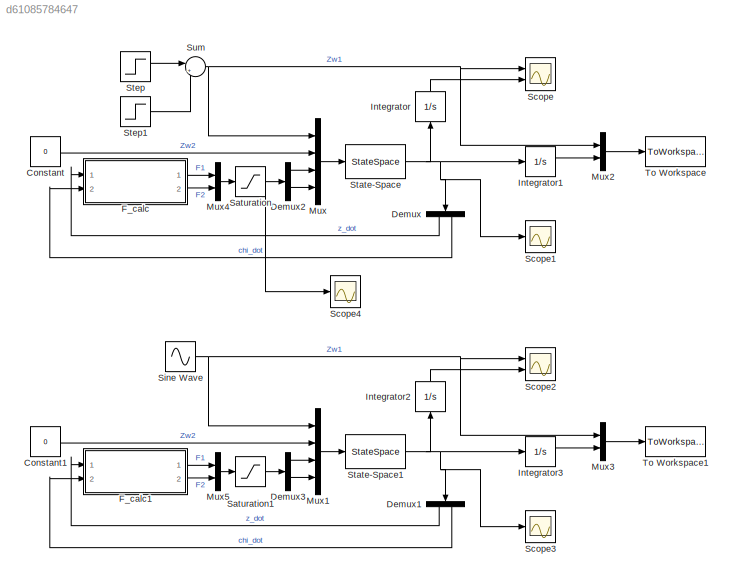
MODEL slx_d61085784647
KIND model
CONFIG AbsTol = auto
CONFIG EnableMultiTasking = off
CONFIG FixedStep = auto
CONFIG MaxStep = auto
CONFIG MinStep = auto
CONFIG RelTol = 1e-3
CONFIG SampleTimeConstraint = Unconstrained
CONFIG Solver = VariableStepAuto
CONFIG SolverName = VariableStepAuto
CONFIG StartTime = 0.0
CONFIG StopTime = 5
BLOCK [Constant] Constant
  Value = 0
BLOCK [Constant] Constant1
  Value = 0
BLOCK [Demux] Demux
  DisplayOption = bar
  Outputs = 2
  Ports = [1, 2]
BLOCK [Demux] Demux1
  DisplayOption = bar
  Outputs = 2
  Ports = [1, 2]
BLOCK [Demux] Demux2
  DisplayOption = bar
  Outputs = 2
  Ports = [1, 2]
BLOCK [Demux] Demux3
  DisplayOption = bar
  Outputs = 2
  Ports = [1, 2]
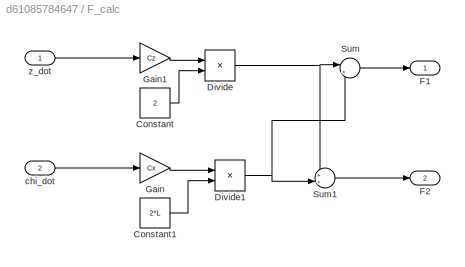
BLOCK [SubSystem] F_calc
  Ports = [2, 2]
  RequestExecContextInheritance = off
BLOCK [Constant] F_calc/Constant
  Value = 2
BLOCK [Constant] F_calc/Constant1
  Value = 2*L
BLOCK [Product] F_calc/Divide
  InputSameDT = off
  Inputs = */
  OutDataTypeStr = Inherit: Inherit via internal rule
  Ports = [2, 1]
  RndMeth = Floor
  SaturateOnIntegerOverflow = off
BLOCK [Product] F_calc/Divide1
  InputSameDT = off
  Inputs = */
  OutDataTypeStr = Inherit: Inherit via internal rule
  Ports = [2, 1]
  RndMeth = Floor
  SaturateOnIntegerOverflow = off
BLOCK [Outport] F_calc/F1
  IconDisplay = Port number
BLOCK [Outport] F_calc/F2
  IconDisplay = Port number
  Port = 2
BLOCK [Gain] F_calc/Gain
  Gain = Cx
  OutDataTypeStr = Inherit: Inherit via internal rule
  ParamDataTypeStr = Inherit: Inherit via internal rule
  SaturateOnIntegerOverflow = off
BLOCK [Gain] F_calc/Gain1
  Gain = Cz
  OutDataTypeStr = Inherit: Inherit via internal rule
  ParamDataTypeStr = Inherit: Inherit via internal rule
  SaturateOnIntegerOverflow = off
BLOCK [Sum] F_calc/Sum
  IconShape = round
  InputSameDT = off
  Inputs = |+-
  OutDataTypeStr = Inherit: Inherit via internal rule
  Ports = [2, 1]
  SaturateOnIntegerOverflow = off
BLOCK [Sum] F_calc/Sum1
  IconShape = round
  InputSameDT = off
  Inputs = ++|
  OutDataTypeStr = Inherit: Inherit via internal rule
  Ports = [2, 1]
  SaturateOnIntegerOverflow = off
BLOCK [Inport] F_calc/chi_dot
  IconDisplay = Port number
  Port = 2
BLOCK [Inport] F_calc/z_dot
  IconDisplay = Port number
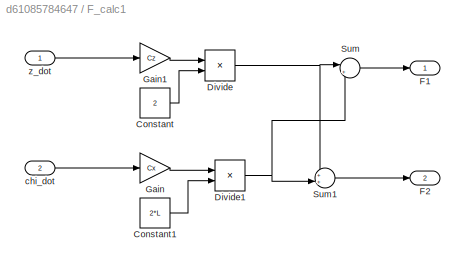
BLOCK [SubSystem] F_calc1
  Ports = [2, 2]
  RequestExecContextInheritance = off
BLOCK [Constant] F_calc1/Constant
  Value = 2
BLOCK [Constant] F_calc1/Constant1
  Value = 2*L
BLOCK [Product] F_calc1/Divide
  InputSameDT = off
  Inputs = */
  OutDataTypeStr = Inherit: Inherit via internal rule
  Ports = [2, 1]
  RndMeth = Floor
  SaturateOnIntegerOverflow = off
BLOCK [Product] F_calc1/Divide1
  InputSameDT = off
  Inputs = */
  OutDataTypeStr = Inherit: Inherit via internal rule
  Ports = [2, 1]
  RndMeth = Floor
  SaturateOnIntegerOverflow = off
BLOCK [Outport] F_calc1/F1
  IconDisplay = Port number
BLOCK [Outport] F_calc1/F2
  IconDisplay = Port number
  Port = 2
BLOCK [Gain] F_calc1/Gain
  Gain = Cx
  OutDataTypeStr = Inherit: Inherit via internal rule
  ParamDataTypeStr = Inherit: Inherit via internal rule
  SaturateOnIntegerOverflow = off
BLOCK [Gain] F_calc1/Gain1
  Gain = Cz
  OutDataTypeStr = Inherit: Inherit via internal rule
  ParamDataTypeStr = Inherit: Inherit via internal rule
  SaturateOnIntegerOverflow = off
BLOCK [Sum] F_calc1/Sum
  IconShape = round
  InputSameDT = off
  Inputs = |+-
  OutDataTypeStr = Inherit: Inherit via internal rule
  Ports = [2, 1]
  SaturateOnIntegerOverflow = off
BLOCK [Sum] F_calc1/Sum1
  IconShape = round
  InputSameDT = off
  Inputs = ++|
  OutDataTypeStr = Inherit: Inherit via internal rule
  Ports = [2, 1]
  SaturateOnIntegerOverflow = off
BLOCK [Inport] F_calc1/chi_dot
  IconDisplay = Port number
  Port = 2
BLOCK [Inport] F_calc1/z_dot
  IconDisplay = Port number
BLOCK [Integrator] Integrator
  Ports = [1, 1]
BLOCK [Integrator] Integrator1
  Ports = [1, 1]
BLOCK [Integrator] Integrator2
  Ports = [1, 1]
BLOCK [Integrator] Integrator3
  Ports = [1, 1]
BLOCK [Mux] Mux
  DisplayOption = bar
  Ports = [4, 1]
BLOCK [Mux] Mux1
  DisplayOption = bar
  Ports = [4, 1]
BLOCK [Mux] Mux2
  DisplayOption = bar
  Inputs = 2
  Ports = [2, 1]
BLOCK [Mux] Mux3
  DisplayOption = bar
  Inputs = 2
  Ports = [2, 1]
BLOCK [Mux] Mux4
  DisplayOption = bar
  Inputs = 2
  Ports = [2, 1]
BLOCK [Mux] Mux5
  DisplayOption = bar
  Inputs = 2
  Ports = [2, 1]
BLOCK [Saturate] Saturation
  InputPortMap = u0
  LowerLimit = -10e3
  Ports = [1, 1]
  UpperLimit = 10e3
BLOCK [Saturate] Saturation1
  InputPortMap = u0
  LowerLimit = -10e3
  Ports = [1, 1]
  UpperLimit = 10e3
BLOCK [Scope] Scope
  Floating = off
  NumInputPorts = 2
  Ports = [2]
  ScopeSpecificationString = Simulink.scopes.TimeScopeBlockCfg('CurrentConfiguration', extmgr.ConfigurationSet(extmgr.Configuration('Core','General UI',true),extmgr.Configuration('Core','Source UI',true),extmgr.Configuration('Sources','WiredSimulink',true,'DataLoggingVariableName','ScopeData1'),extmgr.Configuration('Visuals','Time Domain',true,'SerializedDisplays',{struct('MinYLimReal','-0.01509','MaxYLimReal','0.03501','YLab...<+1497ch>
BLOCK [Scope] Scope1
  Floating = off
  NumInputPorts = 1
  Ports = [1]
  ScopeSpecificationString = Simulink.scopes.TimeScopeBlockCfg('CurrentConfiguration', extmgr.ConfigurationSet(extmgr.Configuration('Core','General UI',true),extmgr.Configuration('Core','Source UI',true),extmgr.Configuration('Sources','WiredSimulink',true),extmgr.Configuration('Visuals','Time Domain',true,'SerializedDisplays',{struct('MinYLimReal','-0.08402','MaxYLimReal','0.09105','YLabelReal','','MinYLimMag','0.00000','MaxY...<+1349ch>
BLOCK [Scope] Scope2
  Floating = off
  NumInputPorts = 2
  Ports = [2]
  ScopeSpecificationString = Simulink.scopes.TimeScopeBlockCfg('CurrentConfiguration', extmgr.ConfigurationSet(extmgr.Configuration('Core','General UI',true),extmgr.Configuration('Core','Source UI',true),extmgr.Configuration('Sources','WiredSimulink',true,'DataLoggingVariableName','ScopeData1'),extmgr.Configuration('Visuals','Time Domain',true,'SerializedDisplays',{struct('MinYLimReal','-0.00739','MaxYLimReal','0.03415','YLab...<+1497ch>
BLOCK [Scope] Scope3
  Floating = off
  NumInputPorts = 1
  Ports = [1]
  ScopeSpecificationString = Simulink.scopes.TimeScopeBlockCfg('CurrentConfiguration', extmgr.ConfigurationSet(extmgr.Configuration('Core','General UI',true),extmgr.Configuration('Core','Source UI',true),extmgr.Configuration('Sources','WiredSimulink',true,'DataLoggingVariableName','ScopeData2'),extmgr.Configuration('Visuals','Time Domain',true,'SerializedDisplays',{struct('MinYLimReal','-0.08402','MaxYLimReal','0.09105','YLab...<+1388ch>
BLOCK [Scope] Scope4
  Floating = off
  NumInputPorts = 1
  Ports = [1]
  ScopeSpecificationString = Simulink.scopes.TimeScopeBlockCfg('CurrentConfiguration', extmgr.ConfigurationSet(extmgr.Configuration('Core','General UI',true),extmgr.Configuration('Core','Source UI',true),extmgr.Configuration('Sources','WiredSimulink',true,'DataLoggingVariableName','ScopeData3'),extmgr.Configuration('Visuals','Time Domain',true,'SerializedDisplays',{struct('MinYLimReal','-5839.11082','MaxYLimReal','6400.56966'...<+1448ch>
BLOCK [Sin] Sine Wave
  Amplitude = 0.01
  Frequency = sinfreq
  Ports = [0, 1]
  SampleTime = 0
BLOCK [StateSpace] State-Space
  A = A
  B = B
  C = C
  D = D
  InitialCondition = 0
  Ports = [1, 1]
BLOCK [StateSpace] State-Space1
  A = A
  B = B
  C = C
  D = D
  InitialCondition = 0
  Ports = [1, 1]
BLOCK [Step] Step
  After = 0.03
  SampleTime = 0
  Time = 0
BLOCK [Step] Step1
  After = -0.03
  SampleTime = 0
BLOCK [Sum] Sum
  IconShape = round
  InputSameDT = off
  Inputs = |++
  OutDataTypeStr = Inherit: Inherit via internal rule
  Ports = [2, 1]
  SaturateOnIntegerOverflow = off
BLOCK [ToWorkspace] To Workspace
  FixptAsFi = on
  MaxDataPoints = inf
  Ports = [1]
  SampleTime = -1
  Save2DSignal = 3-D array (concatenate along third dimension)
  SaveFormat = Structure With Time
  VariableName = Sim_step
BLOCK [ToWorkspace] To Workspace1
  FixptAsFi = on
  MaxDataPoints = inf
  Ports = [1]
  SampleTime = -1
  Save2DSignal = 3-D array (concatenate along third dimension)
  SaveFormat = Structure With Time
  VariableName = Sim_sine
LINE Constant1:1 -> Mux1:2
LINE Constant:1 -> Mux:2
LINE Demux1:1 -> F_calc1:1
LINE Demux1:2 -> F_calc1:2
LINE Demux2:1 -> Mux:3
LINE Demux2:2 -> Mux:4
LINE Demux3:1 -> Mux1:3
LINE Demux3:2 -> Mux1:4
LINE Demux:1 -> F_calc:1
LINE Demux:2 -> F_calc:2
LINE F_calc/Constant1:1 -> F_calc/Divide1:2
LINE F_calc/Constant:1 -> F_calc/Divide:2
NET F_calc/Divide1:1 -> F_calc/Sum1:2, F_calc/Sum:2
NET F_calc/Divide:1 -> F_calc/Sum1:1, F_calc/Sum:1
LINE F_calc/Gain1:1 -> F_calc/Divide:1
LINE F_calc/Gain:1 -> F_calc/Divide1:1
LINE F_calc/Sum1:1 -> F_calc/F2:1
LINE F_calc/Sum:1 -> F_calc/F1:1
LINE F_calc/chi_dot:1 -> F_calc/Gain:1
LINE F_calc/z_dot:1 -> F_calc/Gain1:1
LINE F_calc1/Constant1:1 -> F_calc1/Divide1:2
LINE F_calc1/Constant:1 -> F_calc1/Divide:2
NET F_calc1/Divide1:1 -> F_calc1/Sum1:2, F_calc1/Sum:2
NET F_calc1/Divide:1 -> F_calc1/Sum1:1, F_calc1/Sum:1
LINE F_calc1/Gain1:1 -> F_calc1/Divide:1
LINE F_calc1/Gain:1 -> F_calc1/Divide1:1
LINE F_calc1/Sum1:1 -> F_calc1/F2:1
LINE F_calc1/Sum:1 -> F_calc1/F1:1
LINE F_calc1/chi_dot:1 -> F_calc1/Gain:1
LINE F_calc1/z_dot:1 -> F_calc1/Gain1:1
LINE F_calc1:1 -> Mux5:1
LINE F_calc1:2 -> Mux5:2
LINE F_calc:1 -> Mux4:1
LINE F_calc:2 -> Mux4:2
LINE Integrator1:1 -> Mux2:2
LINE Integrator2:1 -> Scope2:2
LINE Integrator3:1 -> Mux3:2
LINE Integrator:1 -> Scope:2
LINE Mux1:1 -> State-Space1:1
LINE Mux2:1 -> To Workspace:1
LINE Mux3:1 -> To Workspace1:1
LINE Mux4:1 -> Saturation:1
LINE Mux5:1 -> Saturation1:1
LINE Mux:1 -> State-Space:1
LINE Saturation1:1 -> Demux3:1
NET Saturation:1 -> Demux2:1, Scope4:1
NET Sine Wave:1 -> Mux1:1, Mux3:1, Scope2:1
NET State-Space1:1 -> Demux1:1, Integrator2:1, Integrator3:1, Scope3:1
NET State-Space:1 -> Demux:1, Integrator1:1, Integrator:1, Scope1:1
LINE Step1:1 -> Sum:2
LINE Step:1 -> Sum:1
NET Sum:1 -> Mux2:1, Mux:1, Scope:1
note: NET lines group one-source signal fan-out (src -> all destinations, sorted); 1:1 wires keep LINE
